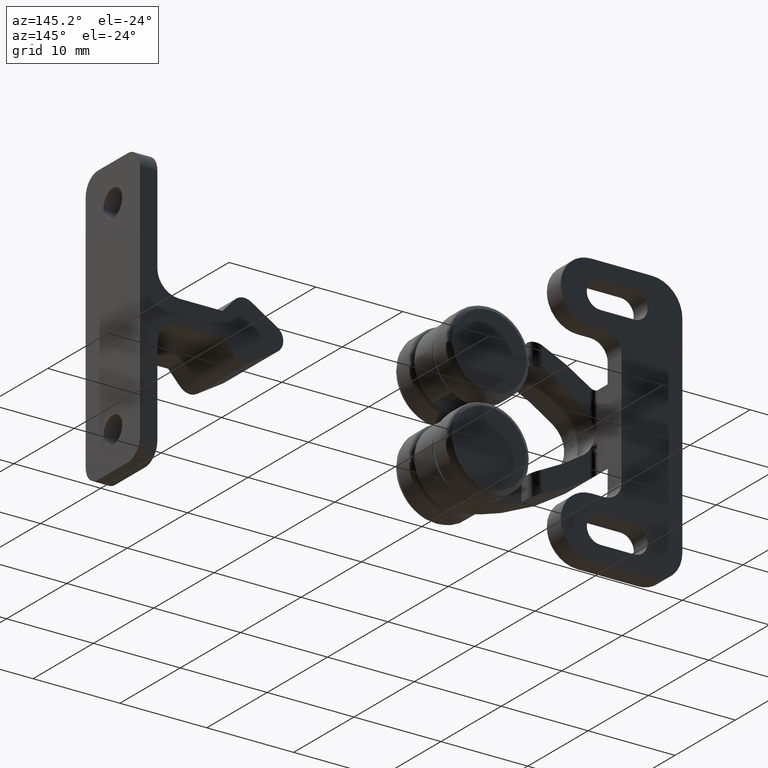
[diagram: clean part render]
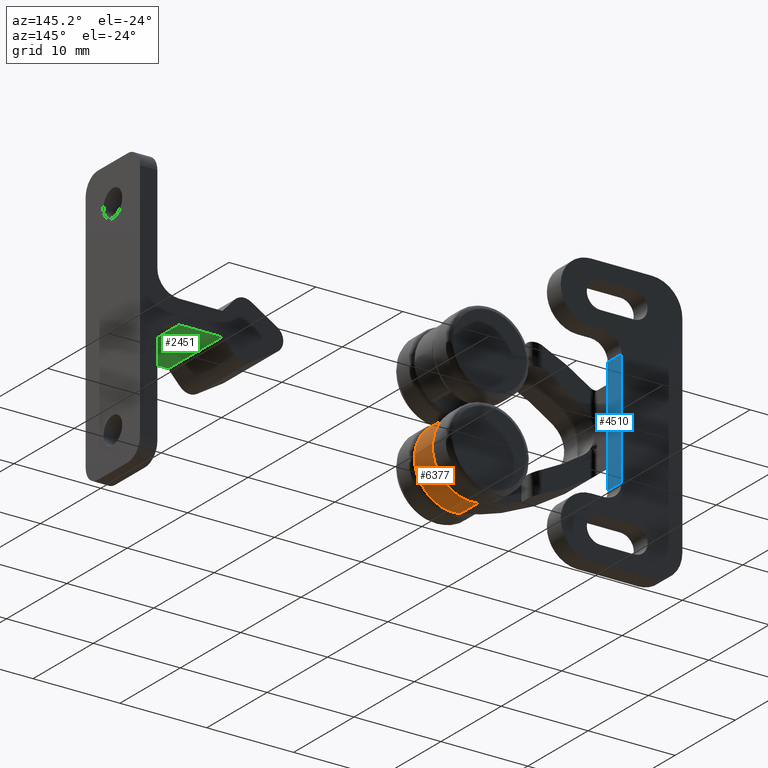
[diagram: same view with three faces highlighted in distinct colors, each labeled with its STEP entity id]
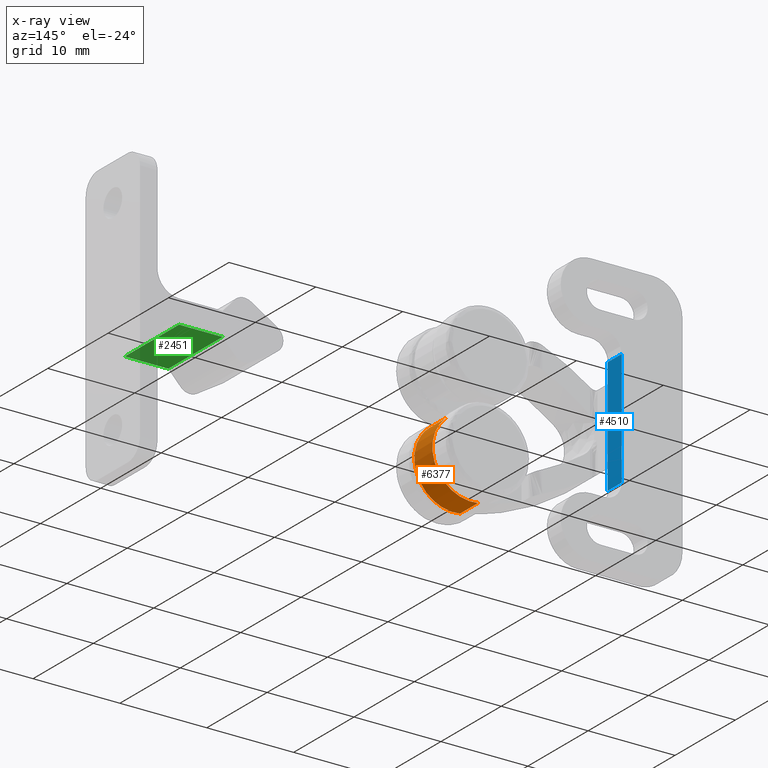
[diagram: x-ray of the same camera — body ghosted, the three highlighted faces saturated]
A machine part, auxiliary view with three faces highlighted in distinct colors.
The next image is the same camera in x-ray (body ghosted, the three faces saturated) — at least one of them is partly hidden behind the body in this view.
Their STEP definitions:

[orange] entity #6377 — the highlighted face is a freeform B-spline surface patch.
#6269=CARTESIAN_POINT('',(22.469698483095250,-9.500000000000000,-1.414330913857300));
#6270=VERTEX_POINT('',#6269);
#6283=CARTESIAN_POINT('',(22.469698483095250,-6.500000000000000,-1.414330913857300));
#6284=VERTEX_POINT('',#6283);
#6285=CARTESIAN_POINT('',(22.469698483095250,-6.500000000000000,-1.414330913857300));
#6286=CARTESIAN_POINT('',(22.469698483095250,-9.500000000000000,-1.414330913857300));
#6287=QUASI_UNIFORM_CURVE('',1,(#6285,#6286),.UNSPECIFIED.,.F.,.U.);
#6288=EDGE_CURVE('',#6284,#6270,#6287,.T.);
#6306=CARTESIAN_POINT('',(22.335831659487152,-6.424999999999997,-1.316624202845439));
#6307=CARTESIAN_POINT('',(22.335831659487152,-9.576875000000001,-1.316624202845439));
#6308=CARTESIAN_POINT('',(25.399262973181475,-6.424999999999998,-3.467237692713767));
#6309=CARTESIAN_POINT('',(25.399262973181475,-9.576875000000001,-3.467237692713767));
#6310=CARTESIAN_POINT('',(23.842927720255389,-6.424999999999997,-6.871289745345464));
#6311=CARTESIAN_POINT('',(23.842927720255389,-9.576875000000001,-6.871289745345464));
#6312=CARTESIAN_POINT('',(22.286592467329303,-6.424999999999998,-10.275341797977166));
#6313=CARTESIAN_POINT('',(22.286592467329303,-9.576875000000001,-10.275341797977166));
#6314=CARTESIAN_POINT('',(18.655922008317081,-6.424999999999997,-9.365406737336755));
#6315=CARTESIAN_POINT('',(18.655922008317081,-9.576875000000001,-9.365406737336755));
#6323=(BOUNDED_SURFACE()B_SPLINE_SURFACE(1,2,((#6306,#6308,#6310,#6312,#6314),(#6307,#6309,#6311,#6313,#6315)),.UNSPECIFIED.,.F.,.F.,.U.)B_SPLINE_SURFACE_WITH_KNOTS((2,2),(3,2,3),(0.0,3.151875000000005),(0.0,6.507634986294948,13.015269972589900),.UNSPECIFIED.)GEOMETRIC_REPRESENTATION_ITEM()RATIONAL_B_SPLINE_SURFACE(((1.0,0.768841832073459,1.0,0.768841832073459,1.0),(1.0,0.768841832073459,1.0,0.768841832073459,1.0)))REPRESENTATION_ITEM('')SURFACE());
#6324=CARTESIAN_POINT('',(19.001800550731051,-9.500000000000000,-9.437790015129590));
#6325=VERTEX_POINT('',#6324);
#6326=CARTESIAN_POINT('',(19.001800550731051,-9.500000000000000,-9.437790015129590));
#6327=CARTESIAN_POINT('',(19.478209076029930,-9.500000000000005,-9.518409758238706));
#6328=CARTESIAN_POINT('',(20.330757594191809,-9.499999999999995,-9.523020410156175));
#6329=CARTESIAN_POINT('',(21.358173859918921,-9.500000000000023,-9.233609863948001));
#6330=CARTESIAN_POINT('',(22.181574394148029,-9.499999999999952,-8.818721183913967));
#6331=CARTESIAN_POINT('',(22.891431736832150,-9.500000000000151,-8.274929049196347));
#6332=CARTESIAN_POINT('',(23.502891129883810,-9.500000000000034,-7.539533788502952));
#6333=CARTESIAN_POINT('',(23.879335478001639,-9.499999999999870,-6.835526464703956));
#6334=CARTESIAN_POINT('',(24.110522198588551,-9.500000000000080,-6.171936100755988));
#6335=CARTESIAN_POINT('',(24.231682533811039,-9.499999999999934,-5.558458594454295));
#6336=CARTESIAN_POINT('',(24.269611625218470,-9.499999999999996,-4.793941825871749));
#6337=CARTESIAN_POINT('',(24.156423329692331,-9.499999999999874,-3.907448129053333));
#6338=CARTESIAN_POINT('',(23.822946281153222,-9.500000000000103,-3.009860514425095));
#6339=CARTESIAN_POINT('',(23.271376503263699,-9.499999999999874,-2.136815186792492));
#6340=CARTESIAN_POINT('',(22.792654146509228,-9.500000000000171,-1.659116696827404));
#6341=CARTESIAN_POINT('',(22.469698483095250,-9.500000000000000,-1.414330913857300));
#6342=B_SPLINE_CURVE_WITH_KNOTS('',3,(#6326,#6327,#6328,#6329,#6330,#6331,#6332,#6333,#6334,#6335,#6336,#6337,#6338,#6339,#6340,#6341),.UNSPECIFIED.,.F.,.U.,(4,1,1,1,1,1,1,1,1,1,1,1,1,4),(0.000000123474521,1.449451924131923,2.524886438773960,3.179494235056415,4.208165834788820,5.190081707971653,6.031653785894574,6.592736143767098,7.294116573697255,7.901968416486905,8.883870838507125,9.959293666016002,10.754164942845881,11.969847878203700),.UNSPECIFIED.);
#6343=EDGE_CURVE('',#6325,#6270,#6342,.T.);
#6344=ORIENTED_EDGE('',*,*,#6343,.F.);
#6345=CARTESIAN_POINT('',(19.001800550731051,-6.500000000000000,-9.437790015129590));
#6346=VERTEX_POINT('',#6345);
#6347=CARTESIAN_POINT('',(19.001800550731051,-6.500000000000000,-9.437790015129590));
#6348=CARTESIAN_POINT('',(19.001800550731051,-9.500000000000000,-9.437790015129590));
#6349=QUASI_UNIFORM_CURVE('',1,(#6347,#6348),.UNSPECIFIED.,.F.,.U.);
#6350=EDGE_CURVE('',#6346,#6325,#6349,.T.);
#6351=ORIENTED_EDGE('',*,*,#6350,.F.);
#6352=CARTESIAN_POINT('',(19.001800550731051,-6.500000000000000,-9.437790015129590));
#6353=CARTESIAN_POINT('',(19.201591292098549,-6.499999999999998,-9.471478051532515));
#6354=CARTESIAN_POINT('',(19.683447686093920,-6.500000000000002,-9.519587033407158));
#6355=CARTESIAN_POINT('',(20.527170640471819,-6.500000000000003,-9.467666753597792));
#6356=CARTESIAN_POINT('',(21.358185617546749,-6.499999999999994,-9.233634788639209));
#6357=CARTESIAN_POINT('',(22.083855678240340,-6.500000000000022,-8.867900299974012));
#6358=CARTESIAN_POINT('',(22.593750617767000,-6.499999999999918,-8.505907826855999));
#6359=CARTESIAN_POINT('',(23.083813142824390,-6.500000000000171,-8.047135168491792));
#6360=CARTESIAN_POINT('',(23.493388063554061,-6.499999999999980,-7.533225181382480));
#6361=CARTESIAN_POINT('',(23.853121668195929,-6.499999999999907,-6.892903147078424));
#6362=CARTESIAN_POINT('',(24.082061626973481,-6.500000000000066,-6.277242377251536));
#6363=CARTESIAN_POINT('',(24.225670298641639,-6.499999999999948,-5.605323515478873));
#6364=CARTESIAN_POINT('',(24.275594036233141,-6.500000000000026,-4.840593721405798));
#6365=CARTESIAN_POINT('',(24.180198023156180,-6.499999999999953,-4.094100962386322));
#6366=CARTESIAN_POINT('',(23.945471480909251,-6.499999999999912,-3.316976030030111));
#6367=CARTESIAN_POINT('',(23.622253255876110,-6.500000000000144,-2.655210278348628));
#6368=CARTESIAN_POINT('',(23.107578833080559,-6.499999999999827,-1.965986789518497));
#6369=CARTESIAN_POINT('',(22.705659409363840,-6.500000000000021,-1.593257561190741));
#6370=CARTESIAN_POINT('',(22.469698483095250,-6.500000000000000,-1.414330913857300));
#6371=B_SPLINE_CURVE_WITH_KNOTS('',3,(#6352,#6353,#6354,#6355,#6356,#6357,#6358,#6359,#6360,#6361,#6362,#6363,#6364,#6365,#6366,#6367,#6368,#6369,#6370),.UNSPECIFIED.,.F.,.U.,(4,1,1,1,1,1,1,1,1,1,1,1,1,1,1,1,4),(0.000000123474521,0.607837478667882,1.449451924131923,2.524886438773960,3.179494235056415,3.880855690796812,4.395199805625619,5.190081707971653,5.844680436166267,6.592736143767098,7.153851803626432,7.901968416486905,8.883870838507125,9.398204197540631,10.333363703197231,11.081466411174141,11.969847878203700),.UNSPECIFIED.);
#6372=EDGE_CURVE('',#6346,#6284,#6371,.T.);
#6373=ORIENTED_EDGE('',*,*,#6372,.T.);
#6374=ORIENTED_EDGE('',*,*,#6288,.T.);
#6375=EDGE_LOOP('',(#6344,#6351,#6373,#6374));
#6376=FACE_OUTER_BOUND('',#6375,.T.);
#6377=ADVANCED_FACE('',(#6376),#6323,.T.);

[blue] entity #4510 — the highlighted face is a freeform B-spline surface patch.
#4475=CARTESIAN_POINT('',(7.0,-2.414884952360729,7.314315119069926));
#4476=CARTESIAN_POINT('',(7.0,-2.414884952360729,-7.313915356885307));
#4477=CARTESIAN_POINT('',(7.0,0.114885055178661,7.314315119069925));
#4478=CARTESIAN_POINT('',(7.0,0.114885055178661,-7.313915356885307));
#4479=B_SPLINE_SURFACE_WITH_KNOTS('',1,1,((#4475,#4477),(#4476,#4478)),.UNSPECIFIED.,.F.,.F.,.U.,(2,2),(2,2),(0.0,14.628230475955229),(0.0,2.529770007539390),.UNSPECIFIED.);
#4480=CARTESIAN_POINT('',(7.0,0.0,6.650000000000000));
#4481=VERTEX_POINT('',#4480);
#4482=CARTESIAN_POINT('',(7.0,0.0,-6.649600000000000));
#4483=VERTEX_POINT('',#4482);
#4484=CARTESIAN_POINT('',(7.0,0.0,6.650000000000000));
#4485=CARTESIAN_POINT('',(7.0,0.0,-6.649600000000000));
#4486=QUASI_UNIFORM_CURVE('',1,(#4484,#4485),.UNSPECIFIED.,.F.,.U.);
#4487=EDGE_CURVE('',#4481,#4483,#4486,.T.);
#4488=ORIENTED_EDGE('',*,*,#4487,.F.);
#4489=CARTESIAN_POINT('',(7.0,-2.300000000000080,6.650000000000000));
#4490=VERTEX_POINT('',#4489);
#4491=CARTESIAN_POINT('',(7.0,-2.300000000000080,6.650000000000000));
#4492=CARTESIAN_POINT('',(7.0,0.0,6.650000000000000));
#4493=QUASI_UNIFORM_CURVE('',1,(#4491,#4492),.UNSPECIFIED.,.F.,.U.);
#4494=EDGE_CURVE('',#4490,#4481,#4493,.T.);
#4495=ORIENTED_EDGE('',*,*,#4494,.F.);
#4496=CARTESIAN_POINT('',(7.0,-2.300000000000080,-6.649600000000000));
#4497=VERTEX_POINT('',#4496);
#4498=CARTESIAN_POINT('',(7.0,-2.300000000000080,6.650000000000000));
#4499=CARTESIAN_POINT('',(7.0,-2.300000000000080,-6.649600000000000));
#4500=QUASI_UNIFORM_CURVE('',1,(#4498,#4499),.UNSPECIFIED.,.F.,.U.);
#4501=EDGE_CURVE('',#4490,#4497,#4500,.T.);
#4502=ORIENTED_EDGE('',*,*,#4501,.T.);
#4503=CARTESIAN_POINT('',(7.0,-2.300000000000080,-6.649600000000000));
#4504=CARTESIAN_POINT('',(7.0,0.0,-6.649600000000000));
#4505=QUASI_UNIFORM_CURVE('',1,(#4503,#4504),.UNSPECIFIED.,.F.,.U.);
#4506=EDGE_CURVE('',#4497,#4483,#4505,.T.);
#4507=ORIENTED_EDGE('',*,*,#4506,.T.);
#4508=EDGE_LOOP('',(#4488,#4495,#4502,#4507));
#4509=FACE_OUTER_BOUND('',#4508,.T.);
#4510=ADVANCED_FACE('',(#4509),#4479,.T.);

[green] entity #2451 — the highlighted face is a freeform B-spline surface patch.
#2165=CARTESIAN_POINT('',(50.500000000000000,-12.500000000000000,-1.350000000000000));
#2166=VERTEX_POINT('',#2165);
#2172=CARTESIAN_POINT('',(55.500000000000000,-12.500000000000000,-1.350000000000000));
#2173=VERTEX_POINT('',#2172);
#2174=CARTESIAN_POINT('',(50.500000000000000,-12.500000000000000,-1.350000000000000));
#2175=CARTESIAN_POINT('',(55.500000000000000,-12.500000000000000,-1.350000000000000));
#2176=QUASI_UNIFORM_CURVE('',1,(#2174,#2175),.UNSPECIFIED.,.F.,.U.);
#2177=EDGE_CURVE('',#2166,#2173,#2176,.T.);
#2214=CARTESIAN_POINT('',(55.500000000000000,-3.500000000000060,-1.350000000000000));
#2215=VERTEX_POINT('',#2214);
#2229=CARTESIAN_POINT('',(50.500000000000000,-3.500000000000060,-1.350000000000000));
#2230=VERTEX_POINT('',#2229);
#2231=CARTESIAN_POINT('',(50.500000000000000,-3.500000000000060,-1.350000000000000));
#2232=CARTESIAN_POINT('',(55.500000000000000,-3.500000000000060,-1.350000000000000));
#2233=QUASI_UNIFORM_CURVE('',1,(#2231,#2232),.UNSPECIFIED.,.F.,.U.);
#2234=EDGE_CURVE('',#2230,#2215,#2233,.T.);
#2422=CARTESIAN_POINT('',(55.500000000000000,-3.500000000000060,-1.350000000000000));
#2423=CARTESIAN_POINT('',(55.500000000000000,-12.500000000000000,-1.350000000000000));
#2424=QUASI_UNIFORM_CURVE('',1,(#2422,#2423),.UNSPECIFIED.,.F.,.U.);
#2425=EDGE_CURVE('',#2215,#2173,#2424,.T.);
#2436=CARTESIAN_POINT('',(55.749749990309027,-12.949549982556251,-1.350000000000000));
#2437=CARTESIAN_POINT('',(50.250249875580508,-12.949549982556251,-1.350000000000000));
#2438=CARTESIAN_POINT('',(55.749749990309027,-3.050449776044998,-1.350000000000000));
#2439=CARTESIAN_POINT('',(50.250249875580508,-3.050449776044998,-1.350000000000000));
#2440=B_SPLINE_SURFACE_WITH_KNOTS('',1,1,((#2436,#2438),(#2437,#2439)),.UNSPECIFIED.,.F.,.F.,.U.,(2,2),(2,2),(0.0,5.499500114728527),(0.0,9.899100206511253),.UNSPECIFIED.);
#2441=ORIENTED_EDGE('',*,*,#2177,.F.);
#2442=CARTESIAN_POINT('',(50.500000000000000,-3.500000000000060,-1.350000000000000));
#2443=CARTESIAN_POINT('',(50.500000000000000,-12.500000000000000,-1.350000000000000));
#2444=QUASI_UNIFORM_CURVE('',1,(#2442,#2443),.UNSPECIFIED.,.F.,.U.);
#2445=EDGE_CURVE('',#2230,#2166,#2444,.T.);
#2446=ORIENTED_EDGE('',*,*,#2445,.F.);
#2447=ORIENTED_EDGE('',*,*,#2234,.T.);
#2448=ORIENTED_EDGE('',*,*,#2425,.T.);
#2449=EDGE_LOOP('',(#2441,#2446,#2447,#2448));
#2450=FACE_OUTER_BOUND('',#2449,.T.);
#2451=ADVANCED_FACE('',(#2450),#2440,.T.);